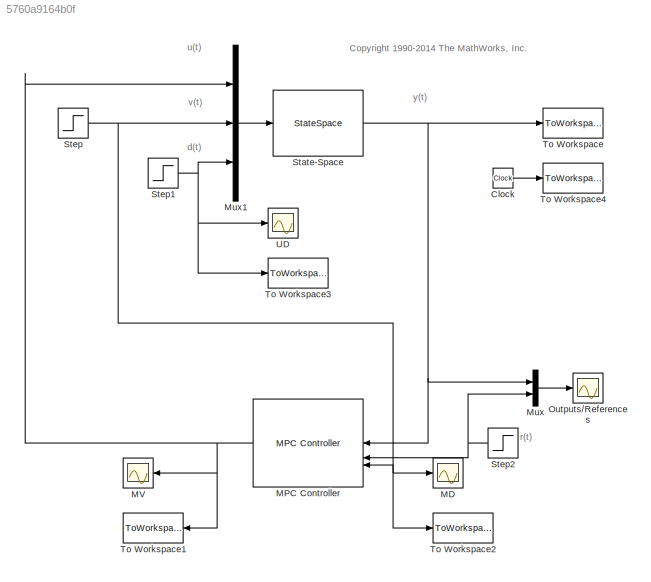
MODEL slx_5760a9164b0f
KIND model
CONFIG AbsTol = auto
CONFIG EnableMultiTasking = off
CONFIG FixedStep = auto
CONFIG MaxStep = auto
CONFIG MinStep = auto
CONFIG RelTol = 1e-3
CONFIG SampleTimeConstraint = Unconstrained
CONFIG SolverName = ode45
CONFIG StartTime = 0.0
CONFIG StopTime = 30
BLOCK [Clock] Clock
BLOCK [Scope] MD
  Floating = off
  NumInputPorts = 1
  ScopeSpecificationString = Simulink.scopes.TimeScopeBlockCfg('CurrentConfiguration', extmgr.ConfigurationSet(extmgr.Configuration('Core','General UI',true),extmgr.Configuration('Core','Source UI',true),extmgr.Configuration('Sources','WiredSimulink',true,'DataLoggingSaveFormat','Structure','DataLoggingLimitDataPoints',true,'DataLoggingDecimation','1','DataLoggingDecimateData',true),extmgr.Configuration('Visuals','Time Domain...<+1647ch>
BLOCK [Reference] MPC Controller  REF=mpclib/MPC Controller  (lib defined in mdl_ae329e0e0455)
  SourceBlock = mpclib/MPC Controller
  SourceType = MPC
BLOCK [Scope] MV
  Floating = off
  NumInputPorts = 1
  ScopeSpecificationString = Simulink.scopes.TimeScopeBlockCfg('CurrentConfiguration', extmgr.ConfigurationSet(extmgr.Configuration('Core','General UI',true),extmgr.Configuration('Core','Source UI',true),extmgr.Configuration('Sources','WiredSimulink',true,'DataLoggingSaveFormat','Structure','DataLoggingLimitDataPoints',true,'DataLoggingDecimation','1','DataLoggingDecimateData',true),extmgr.Configuration('Visuals','Time Domain...<+1667ch>
BLOCK [Mux] Mux
  DisplayOption = bar
  Inputs = 2
BLOCK [Mux] Mux1
  DisplayOption = bar
  Inputs = 3
BLOCK [Scope] Outputs//References
  Floating = off
  NameLocation = top
  NumInputPorts = 1
  ScopeSpecificationString = Simulink.scopes.TimeScopeBlockCfg('CurrentConfiguration', extmgr.ConfigurationSet(extmgr.Configuration('Core','General UI',true),extmgr.Configuration('Core','Source UI',true),extmgr.Configuration('Sources','WiredSimulink',true,'DataLoggingSaveFormat','Structure','DataLoggingLimitDataPoints',true,'DataLoggingDecimation','1','DataLoggingDecimateData',true),extmgr.Configuration('Visuals','Time Domain...<+1650ch>
BLOCK [StateSpace] State-Space
  A = A
  B = B
  C = C
  D = D
  InitialCondition = [0 0 0 0 0]'
BLOCK [Step] Step
  SampleTime = 0
  Time = 10
BLOCK [Step] Step1
  After = -.5
  SampleTime = 0
  Time = 20
BLOCK [Step] Step2
  SampleTime = 0
  Time = 0
BLOCK [ToWorkspace] To Workspace
  MaxDataPoints = Inf
  SampleTime = -1
  VariableName = y
BLOCK [ToWorkspace] To Workspace1
  MaxDataPoints = Inf
  SampleTime = -1
  VariableName = u
BLOCK [ToWorkspace] To Workspace2
  MaxDataPoints = Inf
  SampleTime = -1
  VariableName = v
BLOCK [ToWorkspace] To Workspace3
  MaxDataPoints = Inf
  SampleTime = -1
  VariableName = d
BLOCK [ToWorkspace] To Workspace4
  MaxDataPoints = Inf
  SampleTime = -1
  VariableName = t
BLOCK [Scope] UD
  Floating = off
  NumInputPorts = 1
  ScopeSpecificationString = Simulink.scopes.TimeScopeBlockCfg('CurrentConfiguration', extmgr.ConfigurationSet(extmgr.Configuration('Core','General UI',true),extmgr.Configuration('Core','Source UI',true),extmgr.Configuration('Sources','WiredSimulink',true,'DataLoggingSaveFormat','Structure','DataLoggingLimitDataPoints',true,'DataLoggingDecimation','1','DataLoggingDecimateData',true),extmgr.Configuration('Visuals','Time Domain...<+1655ch>
ANNOTATION (root): <copyright redacted>
ANNOTATION (root): d(t)
ANNOTATION (root): r(t)
ANNOTATION (root): u(t)
ANNOTATION (root): v(t)
ANNOTATION (root): y(t)
LINE Clock:1 -> To Workspace4:1
NET MPC Controller:1 -> MV:1, Mux1:1, To Workspace1:1
LINE Mux1:1 -> State-Space:1
LINE Mux:1 -> Outputs//References:1
NET State-Space:1 -> MPC Controller:1, Mux:1, To Workspace:1
NET Step1:1 -> Mux1:3, To Workspace3:1, UD:1
NET Step2:1 -> MPC Controller:2, Mux:2
NET Step:1 -> MD:1, MPC Controller:3, Mux1:2, To Workspace2:1
note: NET lines group one-source signal fan-out (src -> all destinations, sorted); 1:1 wires keep LINE
